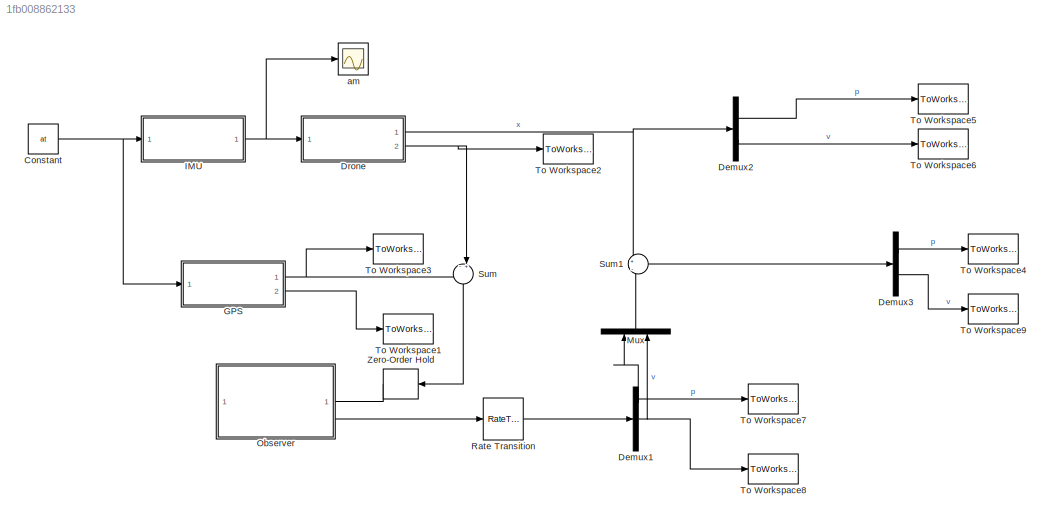
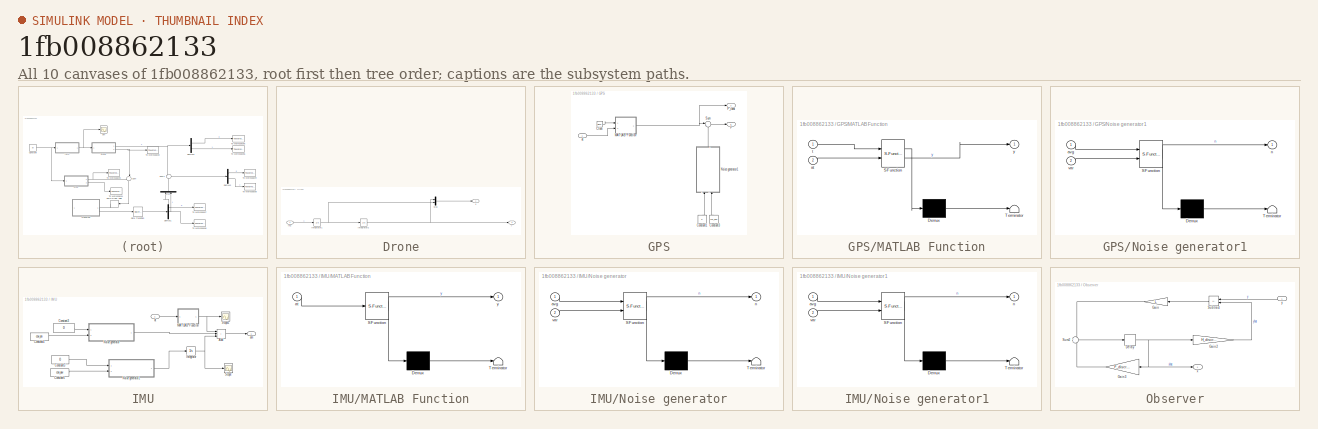
[diagram: thumbnail index - all 10 canvases of the model, root first then tree order]
MODEL slx_1fb008862133
KIND model
CONFIG AbsTol = auto
CONFIG EnableMultiTasking = off
CONFIG FixedStep = auto
CONFIG MaxStep = auto
CONFIG MinStep = auto
CONFIG RelTol = 1e-3
CONFIG SampleTimeConstraint = Unconstrained
CONFIG SolverName = VariableStepAuto
CONFIG StartTime = 0.0
CONFIG StopTime = 30
BLOCK [Constant] Constant
  Value = at
BLOCK [Demux] Demux1
  Outputs = 3
  Ports = [1, 3]
BLOCK [Demux] Demux2
  Outputs = 2
  Ports = [1, 2]
BLOCK [Demux] Demux3
  Outputs = 2
  Ports = [1, 2]
BLOCK [SubSystem] Drone
  Ports = [1, 2]
  RequestExecContextInheritance = off
BLOCK [Inport] Drone/In2
  IconDisplay = Signal name
BLOCK [Integrator] Drone/Integrator1
  InitialCondition = v0
  Ports = [1, 1]
BLOCK [Integrator] Drone/Integrator2
  InitialCondition = p0
  Ports = [1, 1]
BLOCK [Mux] Drone/Mux
  DisplayOption = bar
  Inputs = 2
  Ports = [2, 1]
BLOCK [Outport] Drone/x
BLOCK [Outport] Drone/y
  Port = 2
BLOCK [SubSystem] GPS
  Ports = [1, 2]
  RequestExecContextInheritance = off
BLOCK [Clock] GPS/Clock
BLOCK [Constant] GPS/Constant1
  NameLocation = left
  Value = 0
BLOCK [Constant] GPS/Constant3
  NameLocation = left
  Value = cov_gps
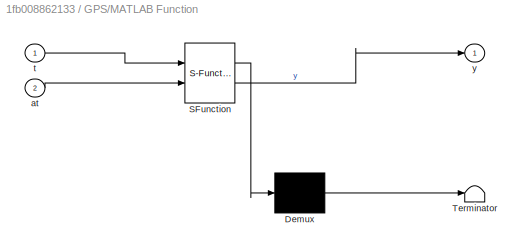
BLOCK [SubSystem] GPS/MATLAB Function
  ErrorFcn = Stateflow.Translate.translate
  PermitHierarchicalResolution = ExplicitOnly
  Ports = [2, 1]
  RequestExecContextInheritance = off
  SFBlockType = MATLAB Function
  TreatAsAtomicUnit = on
BLOCK [Demux] GPS/MATLAB Function/ Demux 
  Outputs = 1
  Ports = [1, 1]
BLOCK [S-Function] GPS/MATLAB Function/ SFunction 
  EnableBusSupport = on
  FunctionName = sf_sfun
  Parameters = Rm,g,p0,v0
  PortCounts = [2 2]
  Ports = [2, 2]
  SFcnIsStateOwnerBlock = off
  SFunctionDeploymentMode = off
  Tag = Stateflow S-Function 2
BLOCK [Terminator] GPS/MATLAB Function/ Terminator 
BLOCK [Inport] GPS/MATLAB Function/at
  Port = 2
BLOCK [Inport] GPS/MATLAB Function/t
BLOCK [Outport] GPS/MATLAB Function/y
BLOCK [SubSystem] GPS/Noise generator1
  ErrorFcn = Stateflow.Translate.translate
  NameLocation = left
  PermitHierarchicalResolution = ExplicitOnly
  Ports = [2, 1]
  RequestExecContextInheritance = off
  SFBlockType = MATLAB Function
  TreatAsAtomicUnit = on
BLOCK [Demux] GPS/Noise generator1/ Demux 
  Outputs = 1
  Ports = [1, 1]
BLOCK [S-Function] GPS/Noise generator1/ SFunction 
  EnableBusSupport = on
  FunctionName = sf_sfun
  PortCounts = [2 2]
  Ports = [2, 2]
  SFcnIsStateOwnerBlock = off
  SFunctionDeploymentMode = off
  Tag = Stateflow S-Function 3
BLOCK [Terminator] GPS/Noise generator1/ Terminator 
BLOCK [Inport] GPS/Noise generator1/avg
BLOCK [Outport] GPS/Noise generator1/n
BLOCK [Inport] GPS/Noise generator1/var
  Port = 2
BLOCK [Outport] GPS/P
BLOCK [Outport] GPS/P_ideal
  Port = 2
BLOCK [Sum] GPS/Sum
  Inputs = |++
  Ports = [2, 1]
BLOCK [Inport] GPS/at
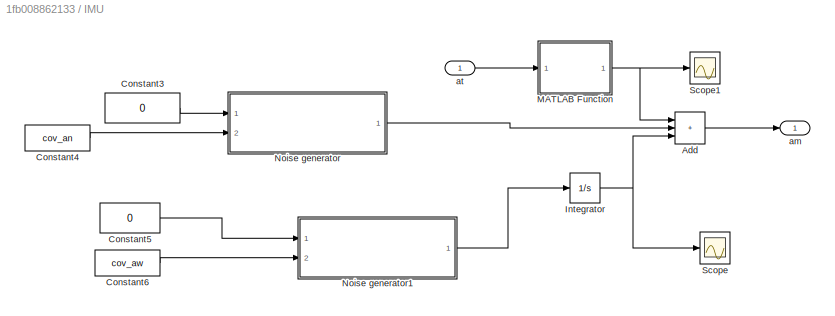
BLOCK [SubSystem] IMU
  Ports = [1, 1]
  RequestExecContextInheritance = off
BLOCK [Sum] IMU/Add
  IconShape = rectangular
  Inputs = +++
  Ports = [3, 1]
BLOCK [Constant] IMU/Constant3
  Value = 0
  VectorParams1D = off
BLOCK [Constant] IMU/Constant4
  Value = cov_an
  VectorParams1D = off
BLOCK [Constant] IMU/Constant5
  Value = 0
  VectorParams1D = off
BLOCK [Constant] IMU/Constant6
  Value = cov_aw
  VectorParams1D = off
BLOCK [Integrator] IMU/Integrator
  Ports = [1, 1]
BLOCK [SubSystem] IMU/MATLAB Function
  ErrorFcn = Stateflow.Translate.translate
  PermitHierarchicalResolution = ExplicitOnly
  Ports = [1, 1]
  RequestExecContextInheritance = off
  SFBlockType = MATLAB Function
  TreatAsAtomicUnit = on
BLOCK [Demux] IMU/MATLAB Function/ Demux 
  Outputs = 1
  Ports = [1, 1]
BLOCK [S-Function] IMU/MATLAB Function/ SFunction 
  EnableBusSupport = on
  FunctionName = sf_sfun
  Parameters = Rm,g
  PortCounts = [1 2]
  Ports = [1, 2]
  SFcnIsStateOwnerBlock = off
  SFunctionDeploymentMode = off
  Tag = Stateflow S-Function 4
BLOCK [Terminator] IMU/MATLAB Function/ Terminator 
BLOCK [Inport] IMU/MATLAB Function/at
BLOCK [Outport] IMU/MATLAB Function/y
BLOCK [SubSystem] IMU/Noise generator
  ErrorFcn = Stateflow.Translate.translate
  PermitHierarchicalResolution = ExplicitOnly
  Ports = [2, 1]
  RequestExecContextInheritance = off
  SFBlockType = MATLAB Function
  TreatAsAtomicUnit = on
BLOCK [Demux] IMU/Noise generator/ Demux 
  Outputs = 1
  Ports = [1, 1]
BLOCK [S-Function] IMU/Noise generator/ SFunction 
  EnableBusSupport = on
  FunctionName = sf_sfun
  PortCounts = [2 2]
  Ports = [2, 2]
  SFcnIsStateOwnerBlock = off
  SFunctionDeploymentMode = off
  Tag = Stateflow S-Function 1
BLOCK [Terminator] IMU/Noise generator/ Terminator 
BLOCK [Inport] IMU/Noise generator/avg
BLOCK [Outport] IMU/Noise generator/n
BLOCK [Inport] IMU/Noise generator/var
  Port = 2
BLOCK [SubSystem] IMU/Noise generator1
  ErrorFcn = Stateflow.Translate.translate
  PermitHierarchicalResolution = ExplicitOnly
  Ports = [2, 1]
  RequestExecContextInheritance = off
  SFBlockType = MATLAB Function
  TreatAsAtomicUnit = on
BLOCK [Demux] IMU/Noise generator1/ Demux 
  Outputs = 1
  Ports = [1, 1]
BLOCK [S-Function] IMU/Noise generator1/ SFunction 
  EnableBusSupport = on
  FunctionName = sf_sfun
  PortCounts = [2 2]
  Ports = [2, 2]
  SFcnIsStateOwnerBlock = off
  SFunctionDeploymentMode = off
  Tag = Stateflow S-Function 5
BLOCK [Terminator] IMU/Noise generator1/ Terminator 
BLOCK [Inport] IMU/Noise generator1/avg
BLOCK [Outport] IMU/Noise generator1/n
BLOCK [Inport] IMU/Noise generator1/var
  Port = 2
BLOCK [Scope] IMU/Scope
  Floating = off
  NumInputPorts = 1
  Ports = [1]
  ScopeSpecificationString = Simulink.scopes.TimeScopeBlockCfg('CurrentConfiguration', extmgr.ConfigurationSet(extmgr.Configuration('Core','General UI',true),extmgr.Configuration('Core','Source UI',true),extmgr.Configuration('Sources','WiredSimulink',true,'DataLoggingVariableName','ScopeData4'),extmgr.Configuration('Visuals','Time Domain',true,'SerializedDisplays',{struct('MinYLimReal','-13.28495','MaxYLimReal','8.49106','YLa...<+1454ch>
BLOCK [Scope] IMU/Scope1
  Floating = off
  NumInputPorts = 1
  Ports = [1]
  ScopeSpecificationString = Simulink.scopes.TimeScopeBlockCfg('CurrentConfiguration', extmgr.ConfigurationSet(extmgr.Configuration('Core','General UI',true),extmgr.Configuration('Core','Source UI',true),extmgr.Configuration('Sources','WiredSimulink',true,'DataLoggingVariableName','ScopeData5'),extmgr.Configuration('Visuals','Time Domain',true,'SerializedDisplays',{struct('MinYLimReal','-0.125','MaxYLimReal','1.125','YLabelRe...<+1427ch>
BLOCK [Outport] IMU/am
BLOCK [Inport] IMU/at
BLOCK [Mux] Mux
  DisplayOption = bar
  Inputs = 2
  NameLocation = right
  Ports = [2, 1]
BLOCK [SubSystem] Observer
  PortSchema = {"entries":[{"content":{"sides":[{"content":{"connectorIds":[]},"type":"ConnectorPlacement.EquallySpacedRectSide","uuid":"b6dae28a-5485-44ef-84e6-2d14792229e7"},{"content":{"connectorIds":["In1","Out1"],"side":"RIGHT"},"type":"ConnectorPlacement.EquallySpacedRectSide","uuid":"53a86c87-87d1-415f-9895-91b2b6ac7daf"},{"content":{"connectorIds":[],"side":"TOP"},"type":"ConnectorPlacement.EquallySpaced...<+385ch>
  Ports = [1, 1]
  RequestExecContextInheritance = off
BLOCK [Delay] Observer/Delay
  DelayLength = 1
  InitialCondition = x0_observer
  InputPortMap = u0
  Ports = [1, 1]
BLOCK [Gain] Observer/Gain
  Gain = L
  Multiplication = Matrix(K*u) (u vector)
BLOCK [Gain] Observer/Gain2
  Gain = H_discrete
  Multiplication = Matrix(K*u) (u vector)
BLOCK [Gain] Observer/Gain3
  Gain = F_discrete
  Multiplication = Matrix(K*u) (u vector)
BLOCK [Sum] Observer/Subtract
  IconShape = rectangular
  Inputs = +-
  Ports = [2, 1]
BLOCK [Sum] Observer/Sum2
  Inputs = +|+
  Ports = [2, 1]
BLOCK [Outport] Observer/x
  IconDisplay = Signal name
BLOCK [Inport] Observer/y
BLOCK [RateTransition] Rate Transition
  OutPortSampleTime = h_plant
  OutPortSampleTimeMultiple = h_plant
  OutPortSampleTimeOpt = Inherit
BLOCK [Sum] Sum
  Inputs = -+|
  NameLocation = left
  Ports = [2, 1]
BLOCK [Sum] Sum1
  Inputs = +|-
  Ports = [2, 1]
BLOCK [ToWorkspace] To Workspace1
  FixptAsFi = on
  MaxDataPoints = inf
  Ports = [1]
  SampleTime = -1
  SaveFormat = Timeseries
  VariableName = p_ideal
BLOCK [ToWorkspace] To Workspace2
  FixptAsFi = on
  MaxDataPoints = inf
  Ports = [1]
  SampleTime = -1
  SaveFormat = Timeseries
  VariableName = pt
BLOCK [ToWorkspace] To Workspace3
  FixptAsFi = on
  MaxDataPoints = inf
  Ports = [1]
  SampleTime = -1
  SaveFormat = Timeseries
  VariableName = p
BLOCK [ToWorkspace] To Workspace4
  FixptAsFi = on
  MaxDataPoints = inf
  Ports = [1]
  SampleTime = -1
  SaveFormat = Timeseries
  VariableName = realp
BLOCK [ToWorkspace] To Workspace5
  FixptAsFi = on
  MaxDataPoints = inf
  Ports = [1]
  SampleTime = -1
  SaveFormat = Timeseries
  VariableName = pt1
BLOCK [ToWorkspace] To Workspace6
  FixptAsFi = on
  MaxDataPoints = inf
  Ports = [1]
  SampleTime = -1
  SaveFormat = Timeseries
  VariableName = vt
BLOCK [ToWorkspace] To Workspace7
  FixptAsFi = on
  MaxDataPoints = inf
  Ports = [1]
  SampleTime = -1
  SaveFormat = Timeseries
  VariableName = deltap
BLOCK [ToWorkspace] To Workspace8
  FixptAsFi = on
  MaxDataPoints = inf
  Ports = [1]
  SampleTime = -1
  SaveFormat = Timeseries
  VariableName = deltav
BLOCK [ToWorkspace] To Workspace9
  FixptAsFi = on
  MaxDataPoints = inf
  Ports = [1]
  SampleTime = -1
  SaveFormat = Timeseries
  VariableName = realv
BLOCK [ZeroOrderHold] Zero-Order Hold
  SampleTime = h
BLOCK [Scope] am
  Floating = off
  NumInputPorts = 1
  Ports = [1]
  ScopeSpecificationString = Simulink.scopes.TimeScopeBlockCfg('CurrentConfiguration', extmgr.ConfigurationSet(extmgr.Configuration('Core','General UI',true),extmgr.Configuration('Core','Source UI',true),extmgr.Configuration('Sources','WiredSimulink',true,'DataLoggingVariableName','ScopeData1'),extmgr.Configuration('Visuals','Time Domain',true,'SerializedDisplays',{struct('MinYLimReal','-14.19838','MaxYLimReal','9.28167','YLa...<+1462ch>
NET Constant:1 -> GPS:1, IMU:1
NET Demux1:1 -> Mux:1, To Workspace7:1
NET Demux1:2 -> Mux:2, To Workspace8:1
LINE Demux2:1 -> To Workspace5:1
LINE Demux2:2 -> To Workspace6:1
LINE Demux3:1 -> To Workspace4:1
LINE Demux3:2 -> To Workspace9:1
LINE Drone/In2:1 -> Drone/Integrator1:1
NET Drone/Integrator1:1 -> Drone/Integrator2:1, Drone/Mux:2
NET Drone/Integrator2:1 -> Drone/Mux:1, Drone/y:1
LINE Drone/Mux:1 -> Drone/x:1
NET Drone:1 -> Demux2:1, Sum1:1
NET Drone:2 -> Sum:2, To Workspace2:1
LINE GPS/Clock:1 -> GPS/MATLAB Function:1
LINE GPS/Constant1:1 -> GPS/Noise generator1:1
LINE GPS/Constant3:1 -> GPS/Noise generator1:2
NET GPS/MATLAB Function:1 -> GPS/P_ideal:1, GPS/Sum:1
LINE GPS/Noise generator1:1 -> GPS/Sum:2
LINE GPS/Sum:1 -> GPS/P:1
LINE GPS/at:1 -> GPS/MATLAB Function:2
NET GPS:1 -> Sum:1, To Workspace3:1
LINE GPS:2 -> To Workspace1:1
LINE IMU/Add:1 -> IMU/am:1
LINE IMU/Constant3:1 -> IMU/Noise generator:1
LINE IMU/Constant4:1 -> IMU/Noise generator:2
LINE IMU/Constant5:1 -> IMU/Noise generator1:1
LINE IMU/Constant6:1 -> IMU/Noise generator1:2
NET IMU/Integrator:1 -> IMU/Add:3, IMU/Scope:1
NET IMU/MATLAB Function:1 -> IMU/Add:1, IMU/Scope1:1
LINE IMU/Noise generator1:1 -> IMU/Integrator:1
LINE IMU/Noise generator:1 -> IMU/Add:2
LINE IMU/at:1 -> IMU/MATLAB Function:1
NET IMU:1 -> Drone:1, am:1
LINE Mux:1 -> Sum1:2
NET Observer/Delay:1 -> Observer/Gain2:1, Observer/Gain3:1, Observer/x:1
LINE Observer/Gain2:1 -> Observer/Subtract:2
LINE Observer/Gain3:1 -> Observer/Sum2:2
LINE Observer/Gain:1 -> Observer/Sum2:1
LINE Observer/Subtract:1 -> Observer/Gain:1
LINE Observer/Sum2:1 -> Observer/Delay:1
LINE Observer/y:1 -> Observer/Subtract:1
LINE Observer:1 -> Rate Transition:1
LINE Rate Transition:1 -> Demux1:1
LINE Sum1:1 -> Demux3:1
LINE Sum:1 -> Zero-Order Hold:1
LINE Zero-Order Hold:1 -> Observer:1
note: NET lines group one-source signal fan-out (src -> all destinations, sorted); 1:1 wires keep LINE
CHART IMU/Noise generator states=1 transitions=1
  STATE_LABEL 'eML_blk_kernel()'
  STATE_LABEL 'SCRIPT:\nfunction n = generate_gaussian_noise(avg, var)\nn = avg + var*randn(length(var), 1);'
CHART GPS/MATLAB Function states=1 transitions=1
  STATE_LABEL 'eML_blk_kernel()'
  STATE_LABEL 'SCRIPT:\nfunction y = gps_pos(t, v0, g, Rm, at, p0)\n    accel = Rm*(at - g);\n    y = zeros(3,1);\n    for i = 1:3\n        y(i) = p0(i) + (v0(i)*t) + (accel(i)*(t^2)/2);\n    end\n'
CHART GPS/Noise generator1 states=1 transitions=1
  STATE_LABEL 'eML_blk_kernel()'
  STATE_LABEL 'SCRIPT:\nfunction n = generate_gaussian_noise(avg, var)\nn = avg + var*randn(length(var), 1);'
CHART IMU/MATLAB Function states=1 transitions=1
  STATE_LABEL 'eML_blk_kernel()'
  STATE_LABEL 'SCRIPT:\nfunction y = fcn(Rm, g, at)\n    y=Rm*(at-g);\n'
CHART IMU/Noise generator1 states=1 transitions=1
  STATE_LABEL 'eML_blk_kernel()'
  STATE_LABEL 'SCRIPT:\nfunction n = generate_gaussian_noise(avg, var)\nn = avg + var*randn(length(var), 1);'
CHART  states=0 transitions=0
CHART  states=0 transitions=0
CHART  states=0 transitions=0
CHART  states=0 transitions=0
CHART  states=0 transitions=0
